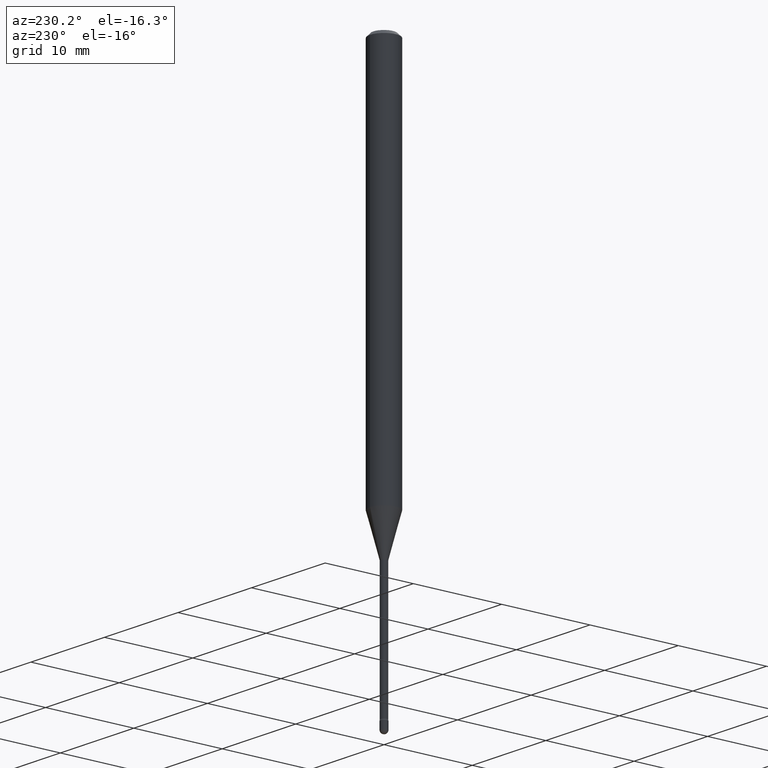
[diagram: clean part render]
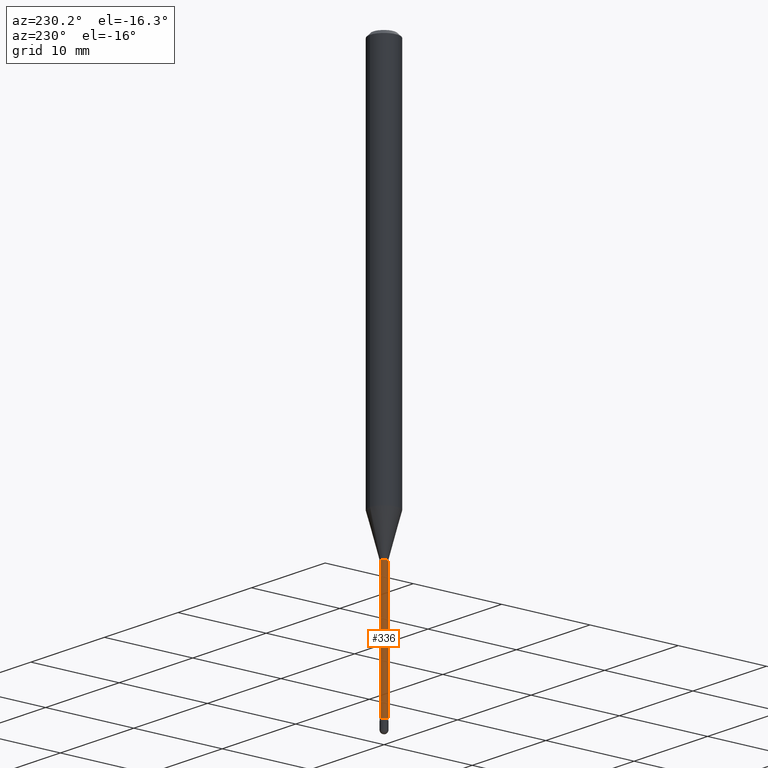
[diagram: same view with one face highlighted and labeled with its STEP entity id]
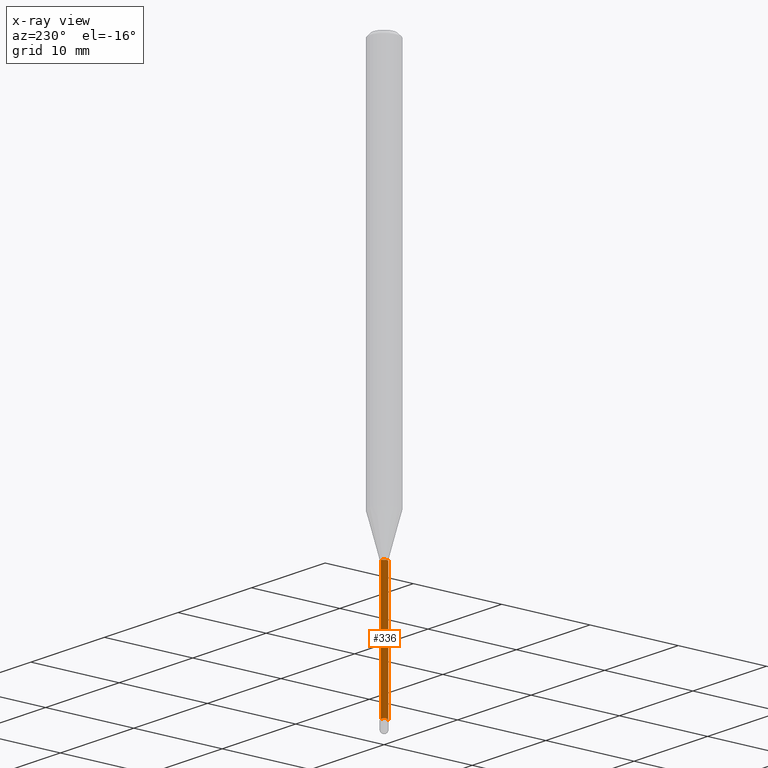
[diagram: x-ray of the same camera — body ghosted, the highlighted face saturated]
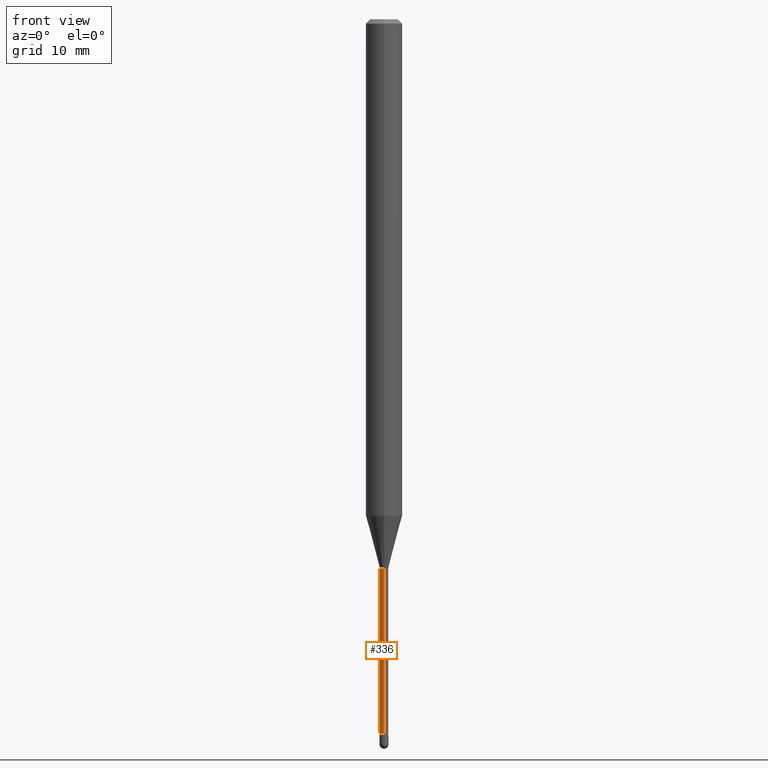
[diagram: same view with one face highlighted and labeled with its STEP entity id]
A machine part, auxiliary view. The second image highlights one B-rep face of the part: STEP entity #336.
The next image is the same camera in x-ray: the body ghosted, the highlighted face saturated — about 0% of this face is hidden behind the body in this view.
A second angle (front view) of the same face is appended — the face is thin or edge-on in the first view.
In plain terms, the highlighted cylindrical surface (edge-blend (fillet) strip) has radius 0.3696 mm, axis along (-0, 0, 1).
Its self-contained STEP definition (entity closure, byte-faithful):
#12 = FACE_OUTER_BOUND ( 'NONE', #374, .T. ) ;
#50 = CARTESIAN_POINT ( 'NONE',  ( 1.067590460480152170E-16, 0.01454999999999149508, -2.447746667724196357 ) ) ;
#61 = ORIENTED_EDGE ( 'NONE', *, *, #323, .T. ) ;
#62 = DIRECTION ( 'NONE',  ( -6.982962677686265922E-15, -1.000000000000000000, 3.491493320896376390E-15 ) ) ;
#68 = ORIENTED_EDGE ( 'NONE', *, *, #140, .F. ) ;
#106 = CIRCLE ( 'NONE', #435, 0.01455000000000004033 ) ;
#118 = CYLINDRICAL_SURFACE ( 'NONE', #510, 0.01455000000000001951 ) ;
#127 = LINE ( 'NONE', #204, #291 ) ;
#140 = EDGE_CURVE ( 'NONE', #491, #408, #310, .T. ) ;
#156 = CARTESIAN_POINT ( 'NONE',  ( -1.016021069602891557E-16, -0.01455000000000657157, -1.881974787463811083 ) ) ;
#178 = DIRECTION ( 'NONE',  ( -2.445460439162084166E-29, 3.491493320896377968E-15, 1.000000000000000000 ) ) ;
#190 = EDGE_CURVE ( 'NONE', #307, #491, #127, .T. ) ;
#204 = CARTESIAN_POINT ( 'NONE',  ( 1.033839680530947034E-16, 0.01455000000000001951, 4.272721710722037114E-16 ) ) ;
#206 = DIRECTION ( 'NONE',  ( -2.445460439162083885E-29, 3.491493320896377968E-15, 1.000000000000000000 ) ) ;
#224 = DIRECTION ( 'NONE',  ( -6.982962677686265922E-15, -1.000000000000000000, 0.000000000000000000 ) ) ;
#235 = CARTESIAN_POINT ( 'NONE',  ( 4.602294890243221810E-29, -6.570902400525277926E-15, -1.881974787463811083 ) ) ;
#241 = CARTESIAN_POINT ( 'NONE',  ( 1.033839680531546075E-16, 0.01454999999999343104, -1.881974787463811083 ) ) ;
#271 = VERTEX_POINT ( 'NONE', #416 ) ;
#282 = AXIS2_PLACEMENT_3D ( 'NONE', #235, #495, #399 ) ;
#291 = VECTOR ( 'NONE', #479, 39.37007874015748143 ) ;
#307 = VERTEX_POINT ( 'NONE', #50 ) ;
#310 = CIRCLE ( 'NONE', #282, 0.01455000000000000043 ) ;
#323 = EDGE_CURVE ( 'NONE', #271, #408, #376, .T. ) ;
#336 = ADVANCED_FACE ( 'NONE', ( #12 ), #118, .T. ) ;
#353 = ORIENTED_EDGE ( 'NONE', *, *, #562, .T. ) ;
#359 = DIRECTION ( 'NONE',  ( -2.445460439162084166E-29, 3.491493320896377968E-15, 1.000000000000000000 ) ) ;
#371 = CARTESIAN_POINT ( 'NONE',  ( -1.169113584055446105E-44, 1.669184350826100908E-30, 4.780733988912460139E-16 ) ) ;
#374 = EDGE_LOOP ( 'NONE', ( #430, #353, #61, #68 ) ) ;
#376 = LINE ( 'NONE', #411, #508 ) ;
#399 = DIRECTION ( 'NONE',  ( -6.982962677686266711E-15, -1.000000000000000000, 0.000000000000000000 ) ) ;
#408 = VERTEX_POINT ( 'NONE', #156 ) ;
#411 = CARTESIAN_POINT ( 'NONE',  ( -1.016021069603353041E-16, -0.01455000000000001951, 5.288746267102884150E-16 ) ) ;
#416 = CARTESIAN_POINT ( 'NONE',  ( -1.016021069602755972E-16, -0.01455000000000858731, -2.447746667724196357 ) ) ;
#423 = CARTESIAN_POINT ( 'NONE',  ( 5.985867641010341457E-29, -8.546291141605397487E-15, -2.447746667724196357 ) ) ;
#430 = ORIENTED_EDGE ( 'NONE', *, *, #190, .F. ) ;
#435 = AXIS2_PLACEMENT_3D ( 'NONE', #423, #178, #224 ) ;
#479 = DIRECTION ( 'NONE',  ( -2.445460439162083885E-29, 3.491493320896377968E-15, 1.000000000000000000 ) ) ;
#491 = VERTEX_POINT ( 'NONE', #241 ) ;
#495 = DIRECTION ( 'NONE',  ( -2.445460439162084166E-29, 3.491493320896377968E-15, 1.000000000000000000 ) ) ;
#508 = VECTOR ( 'NONE', #206, 39.37007874015748143 ) ;
#510 = AXIS2_PLACEMENT_3D ( 'NONE', #371, #359, #62 ) ;
#562 = EDGE_CURVE ( 'NONE', #307, #271, #106, .T. ) ;